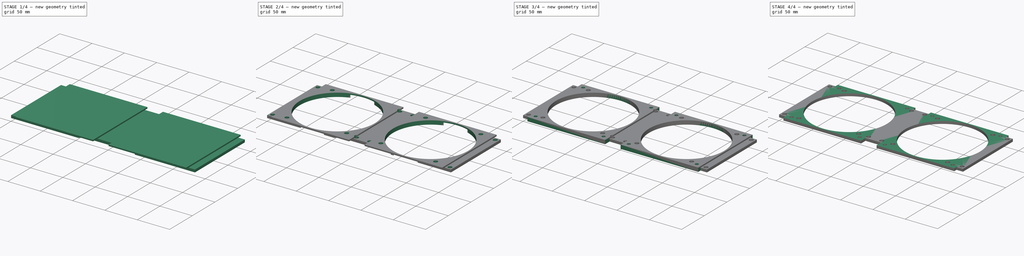
[diagram: build sequence overview — one tinted view per stage of 4, left to right]
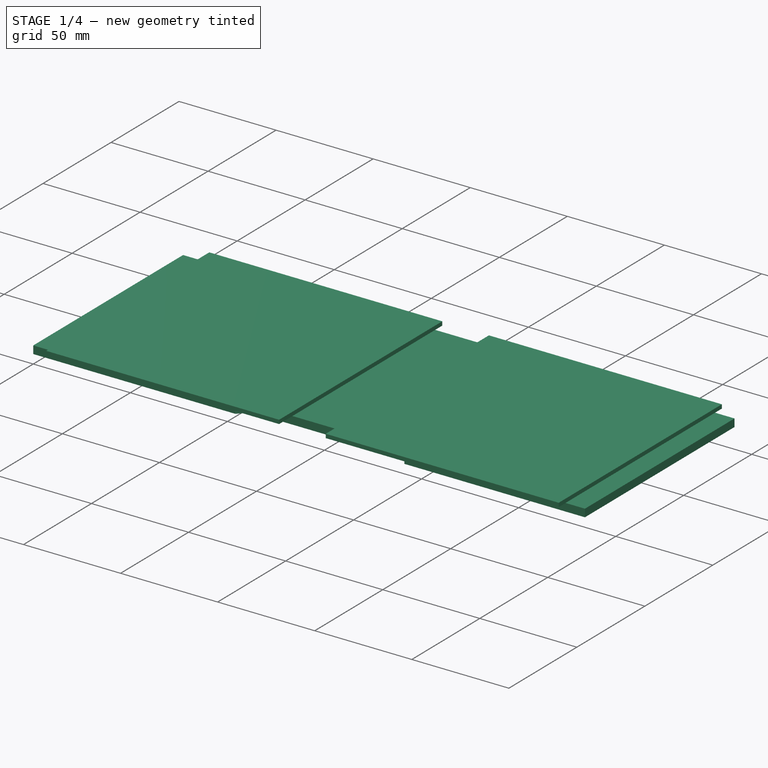
[diagram: stage 1 of 4 — iso view after this stage's code; geometry added in this stage tinted green]
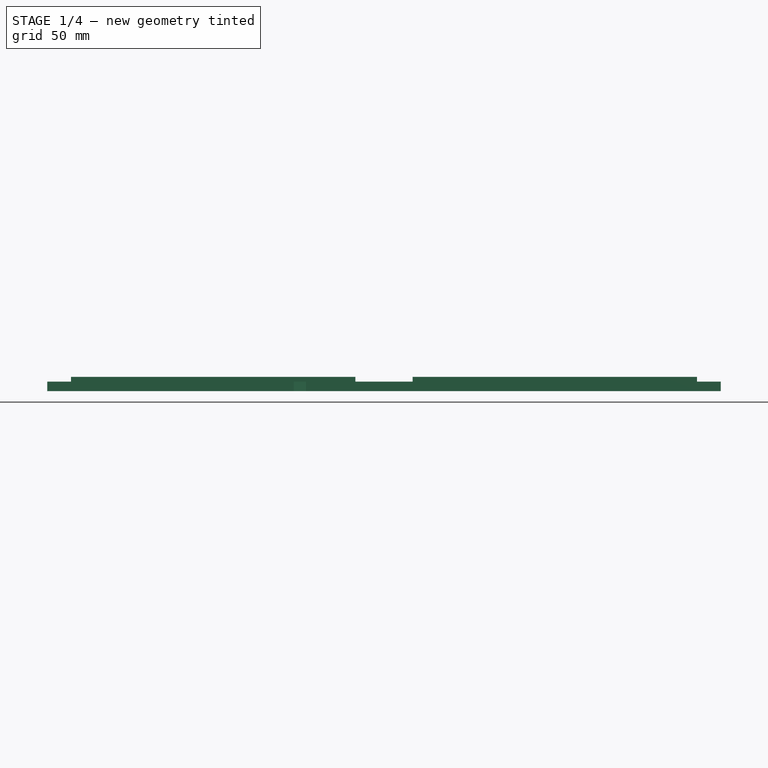
[diagram: stage 1 of 4 — front view after this stage's code; geometry added in this stage tinted green]
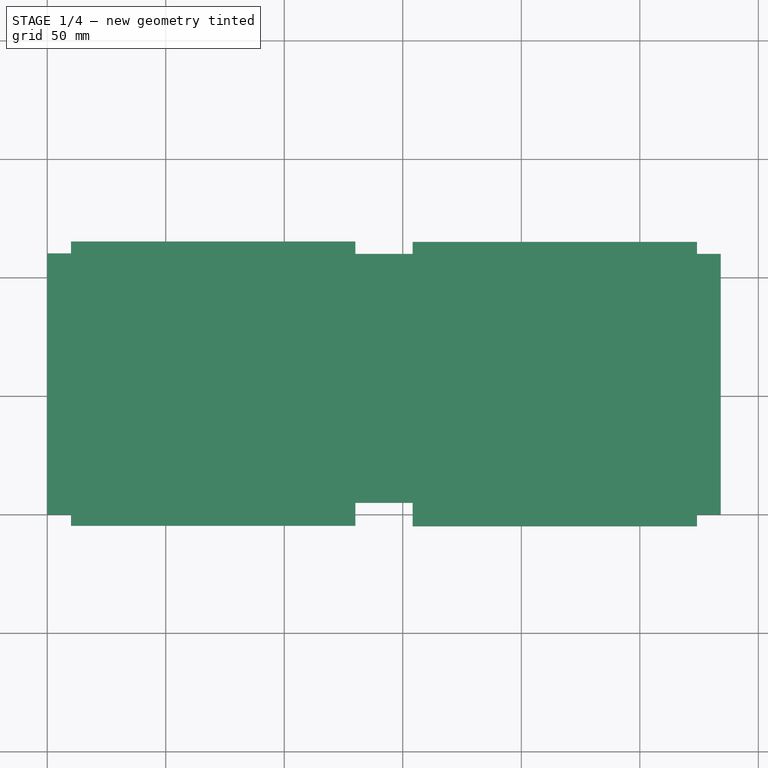
[diagram: stage 1 of 4 — top view after this stage's code; geometry added in this stage tinted green]
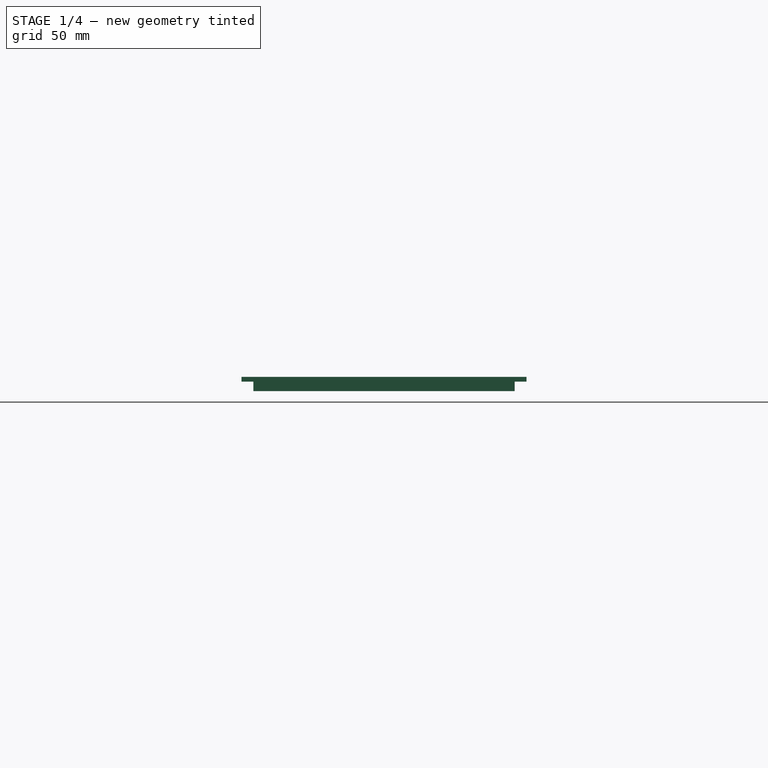
[diagram: stage 1 of 4 — right view after this stage's code; geometry added in this stage tinted green]
FCSTD DOCUMENT  (FreeCAD 1.0R39109 (Git))
Label: bottom_right
License: All rights reserved
LicenseURL: https://en.wikipedia.org/wiki/All_rights_reserved
objects: Sketcher::SketchObject×6, PartDesign::Pocket×6, PartDesign::Pad×3, PartDesign::Body×1
note: 40 computed .brp shape members not serialized (recipe doc carries the construction recipe); baked Part::Feature solids carry a one-line shape summary decoded from their .brp

FEATURE [Sketcher::SketchObject] Sketch
  ArcFitTolerance = 1e-06
  AttachmentSupport = -> [XY_Plane]
  FullyConstrained = false
  MakeInternals = false
  MapMode = 5
  sketch-geometry (12):
    g0: LineSegment StartX=0 StartY=-50 StartZ=0 EndX=104 EndY=-50 EndZ=0
    g1: LineSegment StartX=109.15 StartY=-45 StartZ=0 EndX=191.15 EndY=-45 EndZ=0
    g2: LineSegment StartX=191.15 StartY=-45 StartZ=0 EndX=191.15 EndY=-50 EndZ=0
    g3: LineSegment StartX=191.15 StartY=-50 StartZ=0 EndX=284.15 EndY=-50 EndZ=0
    g4: LineSegment StartX=104 StartY=-50 StartZ=0 EndX=109.15 EndY=-45 EndZ=0
    g5: LineSegment StartX=284.15 StartY=60 StartZ=0 EndX=122.15 EndY=60 EndZ=0
    g6: LineSegment StartX=122.15 StartY=60 StartZ=0 EndX=117.846 EndY=50.9736 EndZ=0
    g7: LineSegment StartX=0 StartY=60.2044 StartZ=0 EndX=101 EndY=60.2044 EndZ=0
    g8: LineSegment StartX=101 StartY=60.2044 StartZ=0 EndX=104.846 EndY=50.9736 EndZ=0
    g9: LineSegment StartX=104.846 StartY=50.9736 StartZ=0 EndX=117.846 EndY=50.9736 EndZ=0
    g10: LineSegment StartX=0 StartY=60.2044 StartZ=0 EndX=0 EndY=-50 EndZ=0
    g11: LineSegment StartX=284.15 StartY=60 StartZ=0 EndX=284.15 EndY=-50 EndZ=0
  constraints (35):
    c: Distance(g0) = 104
    c: Horizontal(g0)
    c: Distance(g1) = 82
    c: Horizontal(g1)
    c: Distance(g2) = 5
    c: Vertical(g2)
    c: Coincident(g2,g1)
    c: Distance(g3) = 93
    c: Horizontal(g3)
    c: Coincident(g3,g2)
    c: DistanceY(g0,g-1) = 50
    c: DistanceY(g3,g-1) = 50
    c: Coincident(g4,g0)
    c: Coincident(g4,g1)
    c: Distance(g5) = 162
    c: Horizontal(g5)
    c: Distance(g6) = 10
    c: Coincident(g6,g5)
    c: Distance(g7) = 101
    c: Horizontal(g7)
    c: Distance(g8) = 10
    c: Coincident(g8,g7)
    c: Distance(g9) = 13
    c: Coincident(g9,g8)
    c: Coincident(g9,g6)
    c: Horizontal(g9)
    c: Coincident(g10,g7)
    c: Coincident(g10,g0)
    c: Vertical(g10)
    c: Coincident(g11,g5)
    c: Coincident(g11,g3)
    c: Vertical(g11)
    c: PointOnObject(g0,g-2)
    c: DistanceY(g3,g5) = 110
    c: DistanceX(g-1,g3) = 284.15
FEATURE [PartDesign::Pad] Pad
  Direction = (0,0,1)
  Length = 4
  Length2 = 10
  Profile = -> Sketch
  ReferenceAxis = -> Sketch [N_Axis]
  Refine = true
  Suppressed = false
  Type = 0
FEATURE [Sketcher::SketchObject] Sketch001
  ArcFitTolerance = 1e-06
  AttachmentSupport = -> [Pad]
  ExternalGeometry = -> [Pad]
  FullyConstrained = true
  MakeInternals = false
  MapMode = 5
  Placement = pos=(0,0,4) rot=(0,0,1;0rad)
  sketch-geometry (8):
    g0: LineSegment StartX=10 StartY=65.2044 StartZ=0 EndX=10 EndY=-54.7956 EndZ=0
    g1: LineSegment StartX=10 StartY=-54.7956 StartZ=0 EndX=130 EndY=-54.7956 EndZ=0
    g2: LineSegment StartX=130 StartY=-54.7956 StartZ=0 EndX=130 EndY=65.2044 EndZ=0
    g3: LineSegment StartX=130 StartY=65.2044 StartZ=0 EndX=10 EndY=65.2044 EndZ=0
    g4: LineSegment StartX=154.15 StartY=65 StartZ=0 EndX=154.15 EndY=-55 EndZ=0
    g5: LineSegment StartX=154.15 StartY=-55 StartZ=0 EndX=274.15 EndY=-55 EndZ=0
    g6: LineSegment StartX=274.15 StartY=-55 StartZ=0 EndX=274.15 EndY=65 EndZ=0
    g7: LineSegment StartX=274.15 StartY=65 StartZ=0 EndX=154.15 EndY=65 EndZ=0
  constraints (24):
    c: Coincident(g0,g1)
    c: Coincident(g1,g2)
    c: Coincident(g2,g3)
    c: Coincident(g3,g0)
    c: Vertical(g0)
    c: Vertical(g2)
    c: Horizontal(g1)
    c: Horizontal(g3)
    c: Distance(g0,g2) = 120
    c: Distance(g1,g3) = 120
    c: DistanceX(g-3,g0) = 10
    c: DistanceY(g-3,g0) = 5
    c: Coincident(g4,g5)
    c: Coincident(g5,g6)
    c: Coincident(g6,g7)
    c: Coincident(g7,g4)
    c: Vertical(g4)
    c: Vertical(g6)
    c: Horizontal(g5)
    c: Horizontal(g7)
    c: Distance(g4,g6) = 120
    c: Distance(g5,g7) = 120
    c: DistanceX(g6,g-4) = 10
    c: DistanceY(g-4,g6) = 5
FEATURE [PartDesign::Pad] Pad001
  BaseFeature = -> Pad
  Direction = (0,0,1)
  Length = 2
  Length2 = 10
  Profile = -> Sketch001
  ReferenceAxis = -> Sketch001 [N_Axis]
  Refine = true
  Suppressed = false
  Type = 0
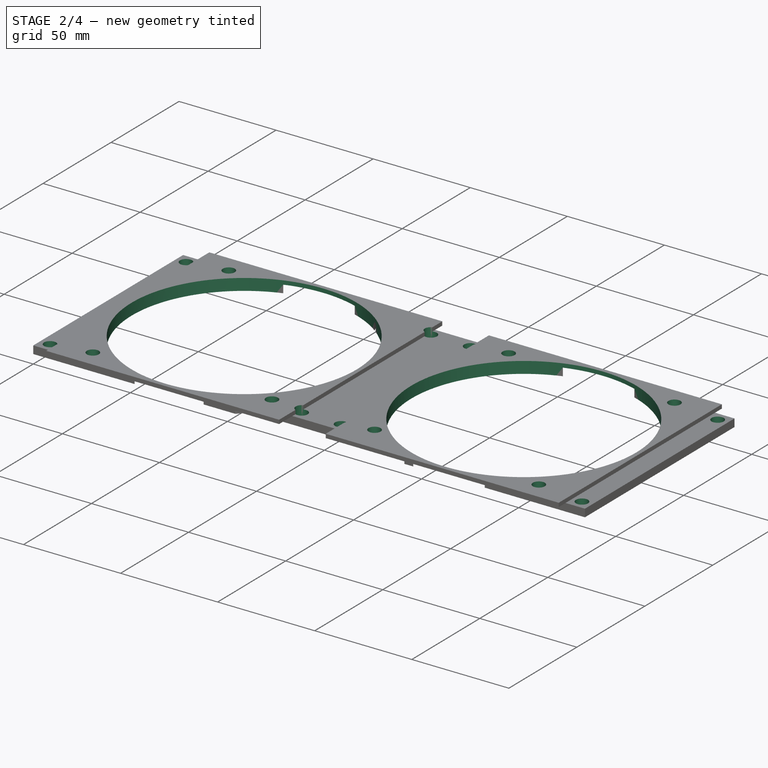
[diagram: stage 2 of 4 — iso view after this stage's code; geometry added in this stage tinted green]
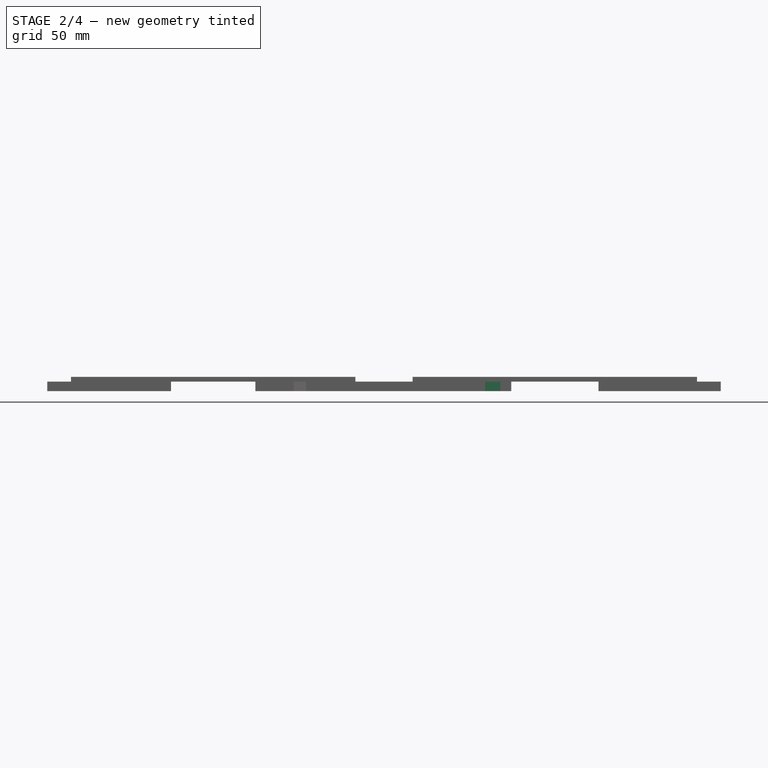
[diagram: stage 2 of 4 — front view after this stage's code; geometry added in this stage tinted green]
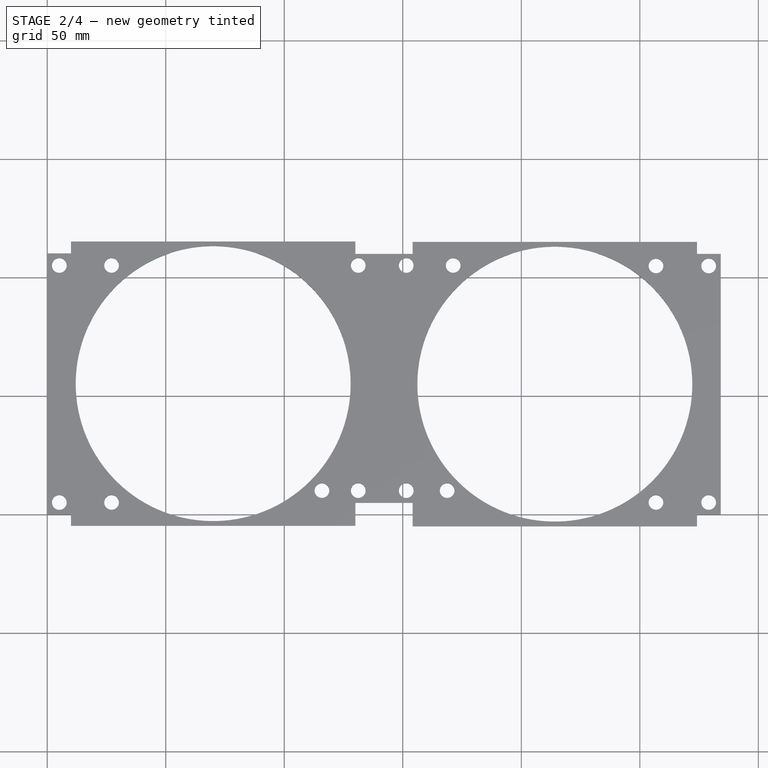
[diagram: stage 2 of 4 — top view after this stage's code; geometry added in this stage tinted green]
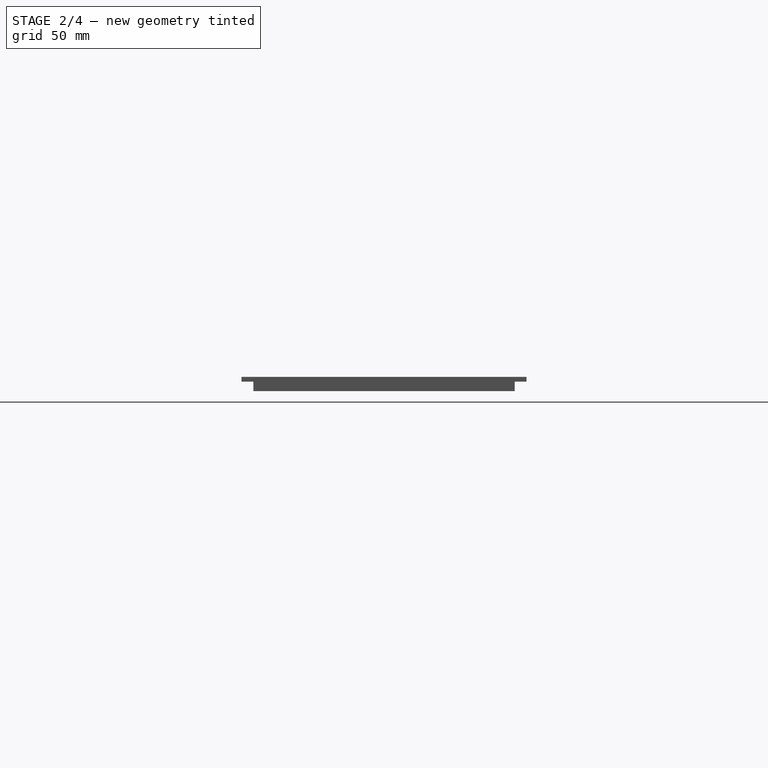
[diagram: stage 2 of 4 — right view after this stage's code; geometry added in this stage tinted green]
FEATURE [Sketcher::SketchObject] Sketch002
  ArcFitTolerance = 1e-06
  AttachmentSupport = -> [Pad001]
  ExternalGeometry = -> [Pad001]
  FullyConstrained = true
  MakeInternals = false
  MapMode = 5
  Placement = pos=(0,0,6) rot=(0,0,1;0rad)
  sketch-geometry (2):
    g0: Circle CenterX=70 CenterY=5.20436 CenterZ=0 NormalX=0 NormalY=0 NormalZ=1 AngleXU=0 Radius=58
    g1: Circle CenterX=214.15 CenterY=5 CenterZ=0 NormalX=0 NormalY=0 NormalZ=1 AngleXU=0 Radius=58
  constraints (6):
    c: DistanceX(g-3,g0) = 60
    c: DistanceY(g0,g-3) = 60
    c: Distance(g0,g-3) = 2
    c: DistanceX(g-4,g1) = 60
    c: DistanceY(g1,g-4) = 60
    c: Distance(g1,g-4) = 2
FEATURE [PartDesign::Pocket] Pocket
  BaseFeature = -> Pad001
  Direction = (0,0,-1)
  Length = 5
  Length2 = 5
  Profile = -> Sketch002
  ReferenceAxis = -> Sketch002 [N_Axis]
  Refine = true
  Suppressed = false
  Type = 1
FEATURE [Sketcher::SketchObject] Sketch004
  ArcFitTolerance = 1e-06
  AttachmentSupport = -> [Pocket]
  ExternalGeometry = -> [Pocket]
  FullyConstrained = false
  MakeInternals = false
  MapMode = 5
  Placement = pos=(0,0,0) rot=(1,0,0;3.14159rad)
  sketch-geometry (15):
    g0: Circle CenterX=5.1 CenterY=44.9 CenterZ=0 NormalX=0 NormalY=0 NormalZ=1 AngleXU=0 Radius=3.1
    g1: Circle CenterX=5.1 CenterY=-55.1044 CenterZ=0 NormalX=0 NormalY=0 NormalZ=1 AngleXU=0 Radius=3.1
    g2: Circle CenterX=279.05 CenterY=44.9 CenterZ=0 NormalX=0 NormalY=0 NormalZ=1 AngleXU=0 Radius=3.1
    g3: Circle CenterX=279.05 CenterY=-54.9 CenterZ=0 NormalX=0 NormalY=0 NormalZ=1 AngleXU=0 Radius=3.1
    g4: Circle CenterX=115.883 CenterY=39.9 CenterZ=0 NormalX=0 NormalY=0 NormalZ=1 AngleXU=0 Radius=3.1
    g5: Circle CenterX=131.204 CenterY=39.9 CenterZ=0 NormalX=0 NormalY=0 NormalZ=1 AngleXU=0 Radius=3.1
    g6: Circle CenterX=168.716 CenterY=39.9 CenterZ=0 NormalX=0 NormalY=0 NormalZ=1 AngleXU=0 Radius=3.1
    g7: Circle CenterX=27.1245 CenterY=44.9 CenterZ=0 NormalX=0 NormalY=0 NormalZ=1 AngleXU=0 Radius=3.1
    g8: Circle CenterX=27.1245 CenterY=-55.1044 CenterZ=0 NormalX=0 NormalY=0 NormalZ=1 AngleXU=0 Radius=3.1
    g9: Circle CenterX=131.204 CenterY=-55.1044 CenterZ=0 NormalX=0 NormalY=0 NormalZ=1 AngleXU=0 Radius=3.1
    g10: Circle CenterX=151.454 CenterY=39.9 CenterZ=0 NormalX=0 NormalY=0 NormalZ=1 AngleXU=0 Radius=3.1
    g11: Circle CenterX=256.82 CenterY=44.9 CenterZ=0 NormalX=0 NormalY=0 NormalZ=1 AngleXU=0 Radius=3.1
    g12: Circle CenterX=256.82 CenterY=-54.9 CenterZ=0 NormalX=0 NormalY=0 NormalZ=1 AngleXU=0 Radius=3.1
    g13: Circle CenterX=151.454 CenterY=-55.1044 CenterZ=0 NormalX=0 NormalY=0 NormalZ=1 AngleXU=0 Radius=3.1
    g14: Circle CenterX=171.252 CenterY=-55.1044 CenterZ=0 NormalX=0 NormalY=0 NormalZ=1 AngleXU=0 Radius=3.1
  constraints (36):
    c: Diameter(g0) = 6.2
    c: Diameter(g1) = 6.2
    c: DistanceX(g-5,g1) = 5.1
    c: DistanceY(g-5,g1) = 5.1
    c: Diameter(g2) = 6.2
    c: Diameter(g3) = 6.2
    c: DistanceX(g2,g-6) = 5.1
    c: DistanceY(g2,g-6) = 5.1
    c: DistanceX(g3,g-7) = 5.1
    c: DistanceY(g-7,g3) = 5.1
    c: Diameter(g4) = 6.2
    c: Diameter(g5) = 6.2
    c: Diameter(g6) = 6.2
    c: Diameter(g7) = 6.2
    c: Horizontal(g7,g0)
    c: Diameter(g8) = 6.2
    c: Horizontal(g8,g1)
    c: Vertical(g8,g7)
    c: DistanceY(g4,g-8) = 5.1
    c: Horizontal(g5,g4)
    c: Horizontal(g6,g5)
    c: Diameter(g9) = 6.2
    c: Vertical(g5,g9)
    c: Horizontal(g9,g8)
    c: Diameter(g10) = 6.2
    c: DistanceY(g10,g-8) = 5.1
    c: Diameter(g11) = 6.2
    c: Horizontal(g11,g2)
    c: Diameter(g12) = 6.2
    c: Horizontal(g12,g3)
    c: Vertical(g12,g11)
    c: Diameter(g13) = 6.2
    c: Vertical(g10,g13)
    c: Horizontal(g13,g9)
    c: Diameter(g14) = 6.2
    c: Horizontal(g14,g13)
FEATURE [PartDesign::Pocket] Pocket001
  BaseFeature = -> Pocket
  Direction = (0,0,1)
  Length = 5
  Length2 = 5
  Profile = -> Sketch004
  ReferenceAxis = -> Sketch004 [N_Axis]
  Refine = true
  Suppressed = false
  Type = 1
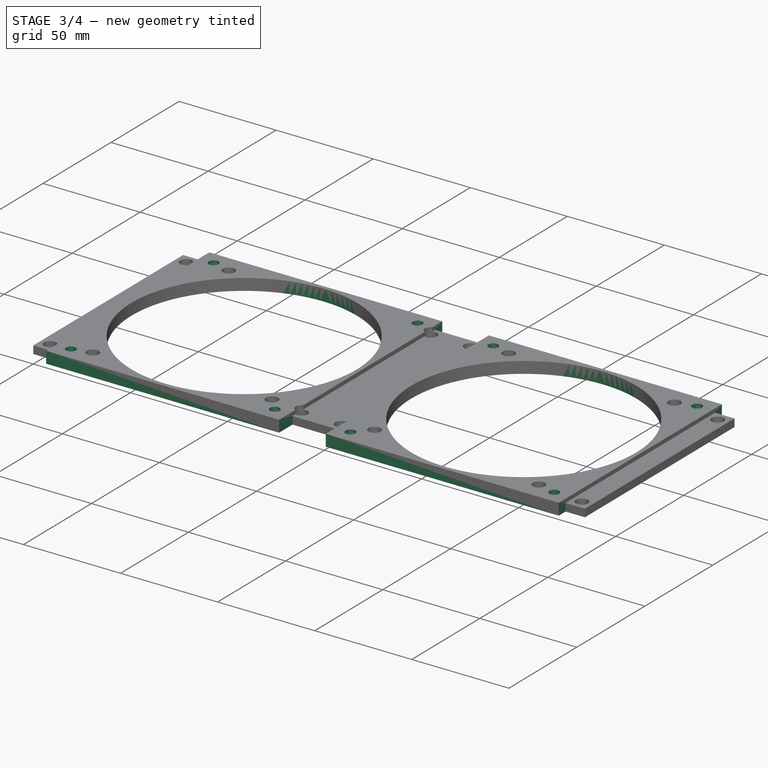
[diagram: stage 3 of 4 — iso view after this stage's code; geometry added in this stage tinted green]
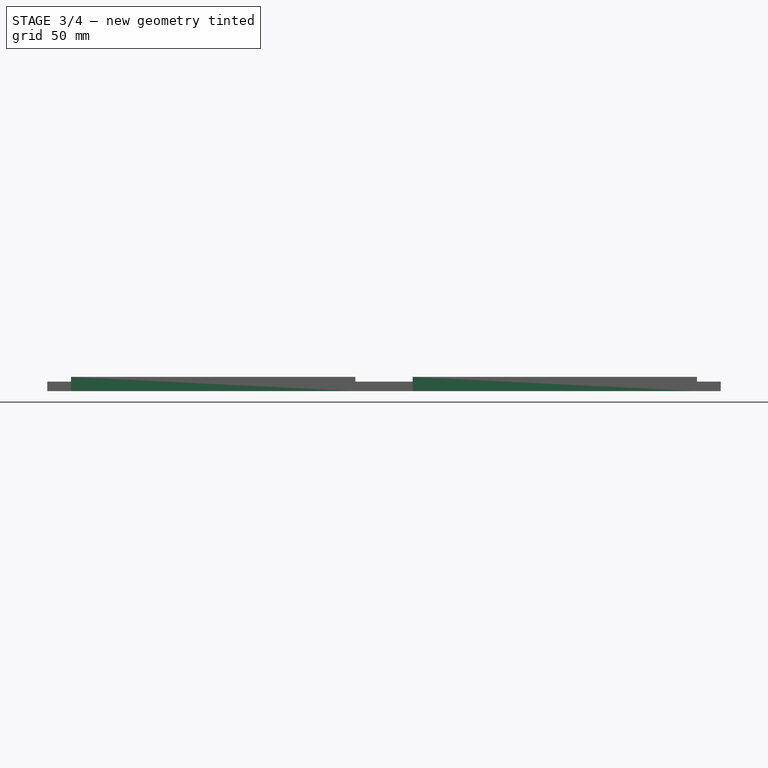
[diagram: stage 3 of 4 — front view after this stage's code; geometry added in this stage tinted green]
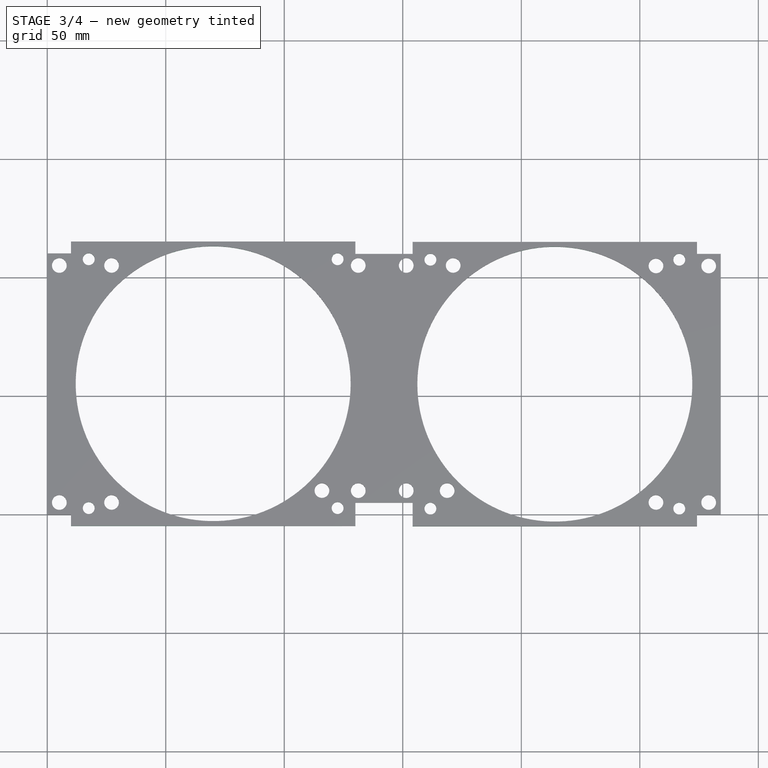
[diagram: stage 3 of 4 — top view after this stage's code; geometry added in this stage tinted green]
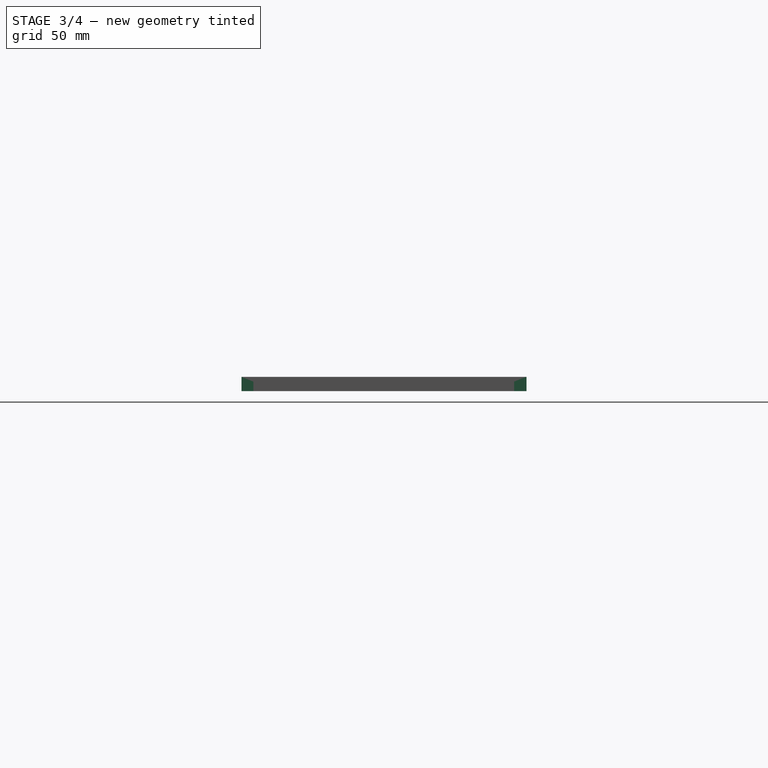
[diagram: stage 3 of 4 — right view after this stage's code; geometry added in this stage tinted green]
FEATURE [PartDesign::Pad] Pad002
  BaseFeature = -> Pocket001
  Direction = (0,0,-1)
  Length = 4
  Length2 = 10
  Profile = -> Pocket001 [Face8,Face7,Face39,Face40]
  Refine = true
  Suppressed = false
  Type = 0
FEATURE [Sketcher::SketchObject] Sketch005
  ArcFitTolerance = 1e-06
  AttachmentSupport = -> [Pad002]
  ExternalGeometry = -> [Pad002]
  FullyConstrained = true
  MakeInternals = false
  MapMode = 5
  Placement = pos=(0,0,0) rot=(1,0,0;3.14159rad)
  sketch-geometry (8):
    g0: Circle CenterX=17.5 CenterY=47.2956 CenterZ=0 NormalX=0 NormalY=0 NormalZ=1 AngleXU=0 Radius=3.5
    g1: Circle CenterX=122.5 CenterY=-57.7044 CenterZ=0 NormalX=0 NormalY=0 NormalZ=1 AngleXU=0 Radius=3.5
    g2: Circle CenterX=122.5 CenterY=47.2956 CenterZ=0 NormalX=0 NormalY=0 NormalZ=1 AngleXU=0 Radius=3.5
    g3: Circle CenterX=17.5 CenterY=-57.7044 CenterZ=0 NormalX=0 NormalY=0 NormalZ=1 AngleXU=0 Radius=3.5
    g4: Circle CenterX=161.65 CenterY=47.5 CenterZ=0 NormalX=0 NormalY=0 NormalZ=1 AngleXU=0 Radius=3.5
    g5: Circle CenterX=266.65 CenterY=-57.5 CenterZ=0 NormalX=0 NormalY=0 NormalZ=1 AngleXU=0 Radius=3.5
    g6: Circle CenterX=266.65 CenterY=47.5 CenterZ=0 NormalX=0 NormalY=0 NormalZ=1 AngleXU=0 Radius=3.5
    g7: Circle CenterX=161.65 CenterY=-57.5 CenterZ=0 NormalX=0 NormalY=0 NormalZ=1 AngleXU=0 Radius=3.5
  constraints (24):
    c: Diameter(g0) = 7
    c: DistanceX(g-3,g0) = 7.5
    c: DistanceY(g0,g-3) = 7.5
    c: Diameter(g1) = 7
    c: DistanceX(g1,g-4) = 7.5
    c: DistanceY(g-4,g1) = 7.5
    c: Diameter(g2) = 7
    c: Diameter(g3) = 7
    c: Vertical(g0,g3)
    c: Horizontal(g3,g1)
    c: Horizontal(g0,g2)
    c: Vertical(g2,g1)
    c: Diameter(g4) = 7
    c: Diameter(g5) = 7
    c: Diameter(g6) = 7
    c: Diameter(g7) = 7
    c: Vertical(g4,g7)
    c: Horizontal(g7,g5)
    c: Vertical(g5,g6)
    c: DistanceX(g-6,g4) = 7.5
    c: DistanceY(g4,g-6) = 7.5
    c: DistanceX(g5,g-5) = 7.5
    c: DistanceY(g-5,g5) = 7.5
    c: Horizontal(g6,g4)
FEATURE [PartDesign::Pocket] Pocket002
  BaseFeature = -> Pad002
  Direction = (0,0,1)
  Length = 2
  Length2 = 5
  Profile = -> Sketch005
  ReferenceAxis = -> Sketch005 [N_Axis]
  Refine = true
  Suppressed = false
  Type = 0
FEATURE [Sketcher::SketchObject] Sketch006
  ArcFitTolerance = 1e-06
  AttachmentSupport = -> [Pocket002]
  ExternalGeometry = -> [Pocket002]
  FullyConstrained = false
  MakeInternals = false
  MapMode = 5
  Placement = pos=(0,0,0) rot=(1,0,0;3.14159rad)
  sketch-geometry (8):
    g0: Circle CenterX=17.5 CenterY=47.2956 CenterZ=0 NormalX=0 NormalY=0 NormalZ=1 AngleXU=0 Radius=2.5
    g1: Circle CenterX=122.5 CenterY=47.2956 CenterZ=0 NormalX=0 NormalY=0 NormalZ=1 AngleXU=0 Radius=2.5
    g2: Circle CenterX=17.5 CenterY=-57.7044 CenterZ=0 NormalX=0 NormalY=0 NormalZ=1 AngleXU=0 Radius=2.5
    g3: Circle CenterX=122.5 CenterY=-57.7044 CenterZ=0 NormalX=0 NormalY=0 NormalZ=1 AngleXU=0 Radius=2.5
    g4: Circle CenterX=161.65 CenterY=47.5 CenterZ=0 NormalX=0 NormalY=0 NormalZ=1 AngleXU=0 Radius=2.5
    g5: Circle CenterX=266.65 CenterY=47.5 CenterZ=0 NormalX=0 NormalY=0 NormalZ=1 AngleXU=0 Radius=2.5
    g6: Circle CenterX=266.65 CenterY=-57.5 CenterZ=0 NormalX=0 NormalY=0 NormalZ=1 AngleXU=0 Radius=2.5
    g7: Circle CenterX=161.65 CenterY=-57.5 CenterZ=0 NormalX=0 NormalY=0 NormalZ=1 AngleXU=0 Radius=2.5
  constraints (8):
    c: Diameter(g0) = 5
    c: Diameter(g1) = 5
    c: Diameter(g2) = 5
    c: Diameter(g3) = 5
    c: Diameter(g4) = 5
    c: Diameter(g5) = 5
    c: Diameter(g6) = 5
    c: Diameter(g7) = 5
FEATURE [PartDesign::Pocket] Pocket003
  BaseFeature = -> Pocket002
  Direction = (0,0,1)
  Length = 5
  Length2 = 5
  Profile = -> Sketch006
  ReferenceAxis = -> Sketch006 [N_Axis]
  Refine = true
  Suppressed = false
  Type = 1
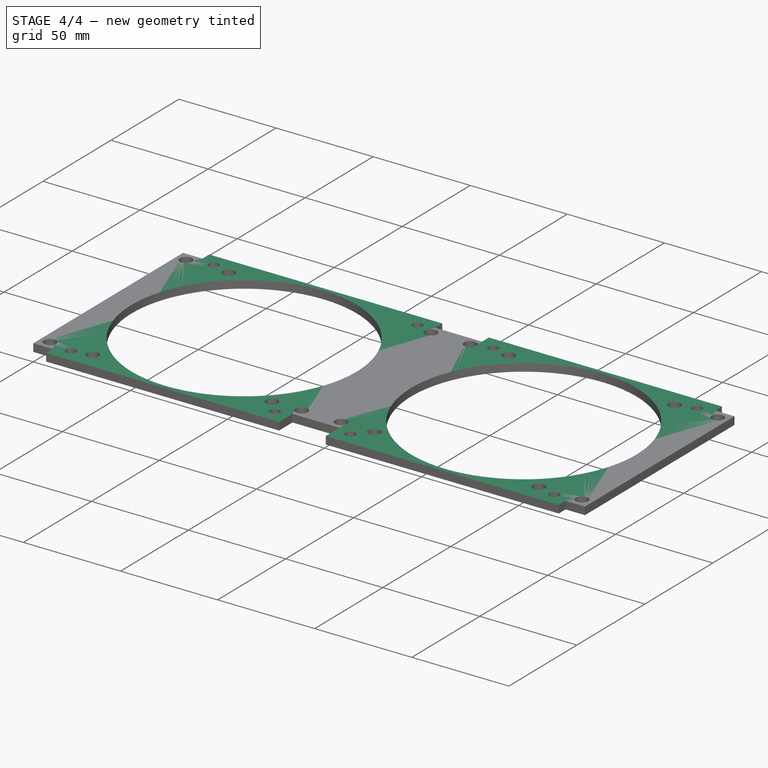
[diagram: stage 4 of 4 — iso view after this stage's code; geometry added in this stage tinted green]
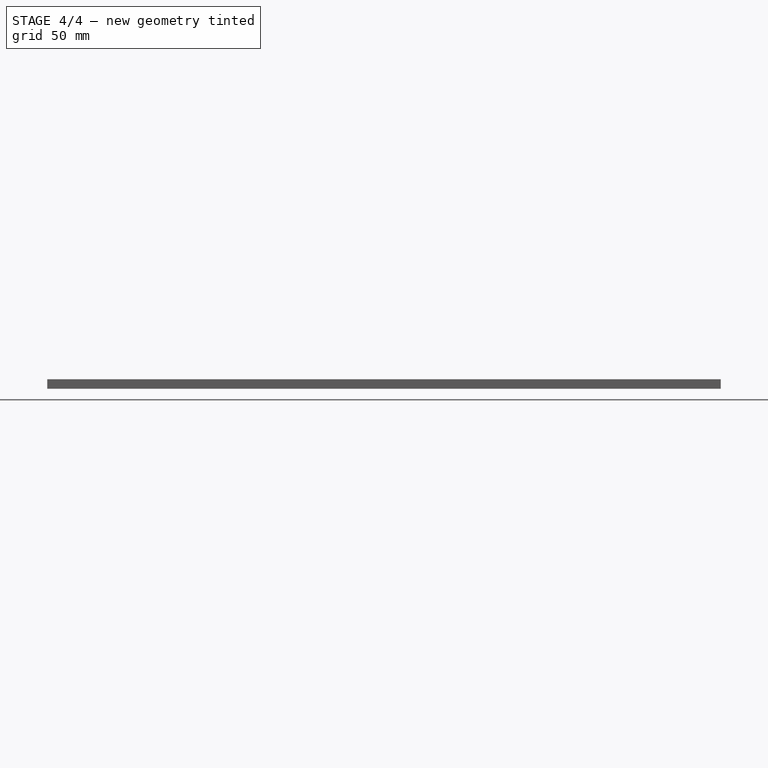
[diagram: stage 4 of 4 — front view after this stage's code; geometry added in this stage tinted green]
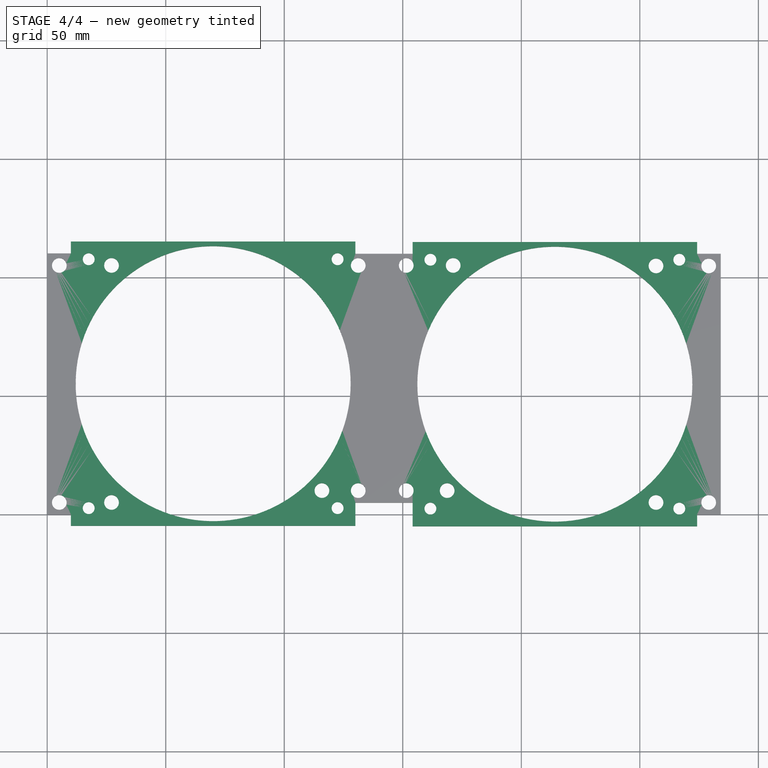
[diagram: stage 4 of 4 — top view after this stage's code; geometry added in this stage tinted green]
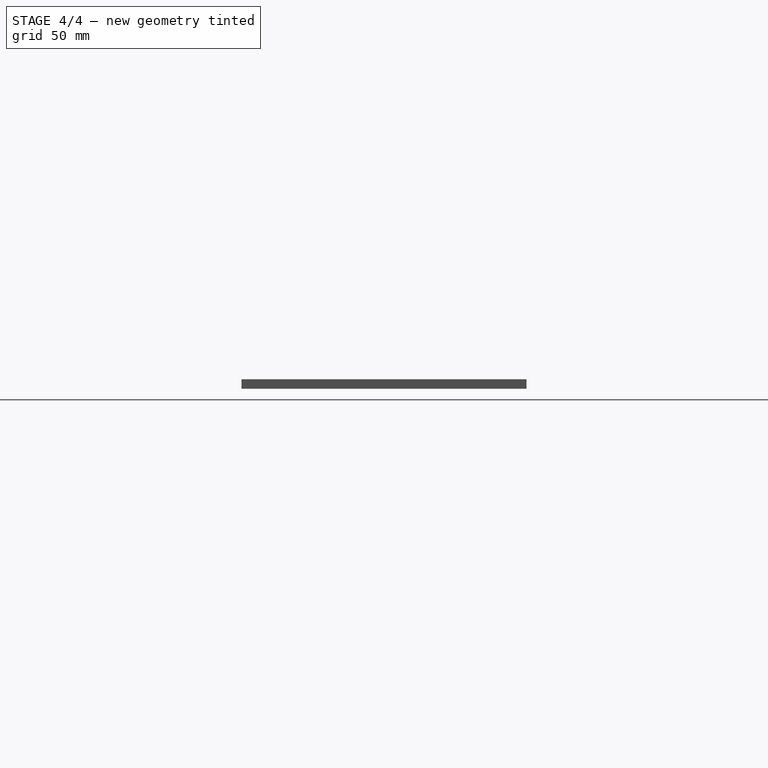
[diagram: stage 4 of 4 — right view after this stage's code; geometry added in this stage tinted green]
FEATURE [PartDesign::Pocket] Pocket004
  BaseFeature = -> Pocket003
  Direction = (0,0,-1)
  Length = 2
  Length2 = 5
  Profile = -> Pad002 [Face9]
  Refine = true
  Suppressed = false
  Type = 0
FEATURE [PartDesign::Pocket] Pocket005
  BaseFeature = -> Pocket004
  Direction = (0,0,-1)
  Length = 2
  Length2 = 5
  Profile = -> Pocket004 [Face46]
  Refine = true
  Suppressed = false
  Type = 0
FEATURE [PartDesign::Body] Body
  AllowCompound = false
  Group = -> [Sketch,Pad,Sketch001,Pad001,Sketch002,Pocket,Sketch004,Pocket001,Pad002,Sketch005,Pocket002,Sketch006,Pocket003,Pocket004,Pocket005]
  Origin = -> Origin
  Tip = -> Pocket005
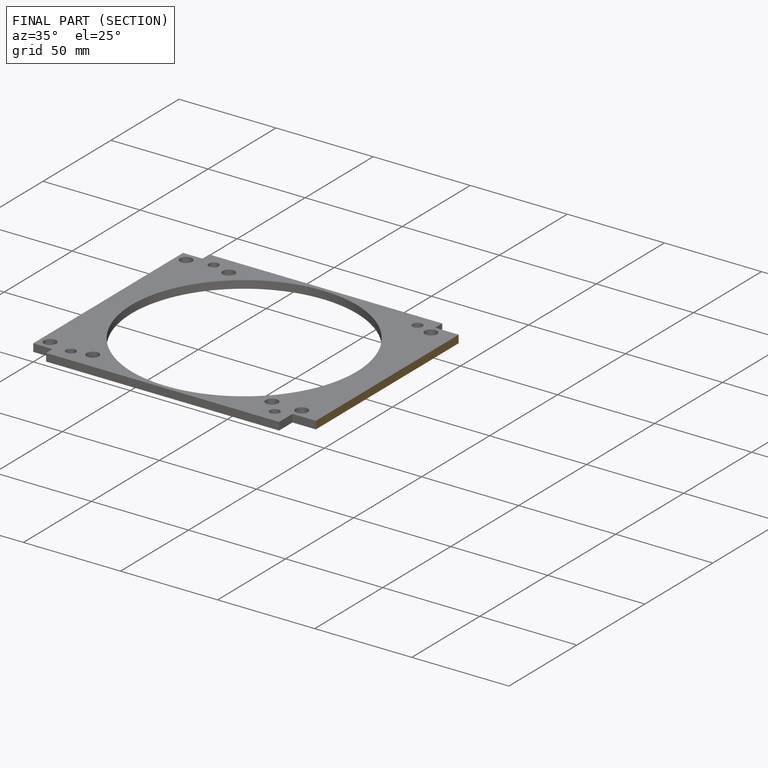
[diagram: finished part — half-section view (interior)]
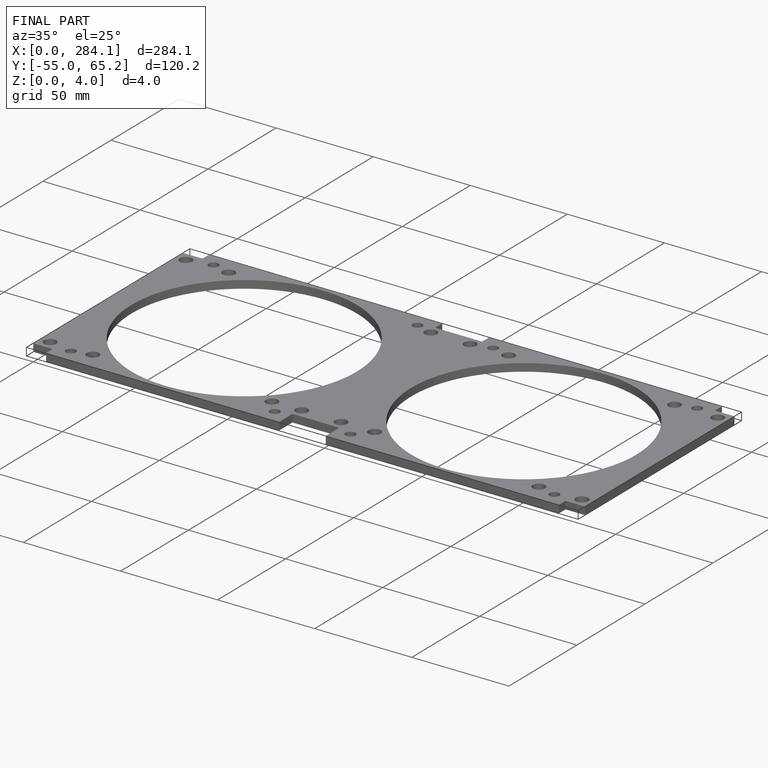
[diagram: finished part — iso view with bounding-box wireframe]
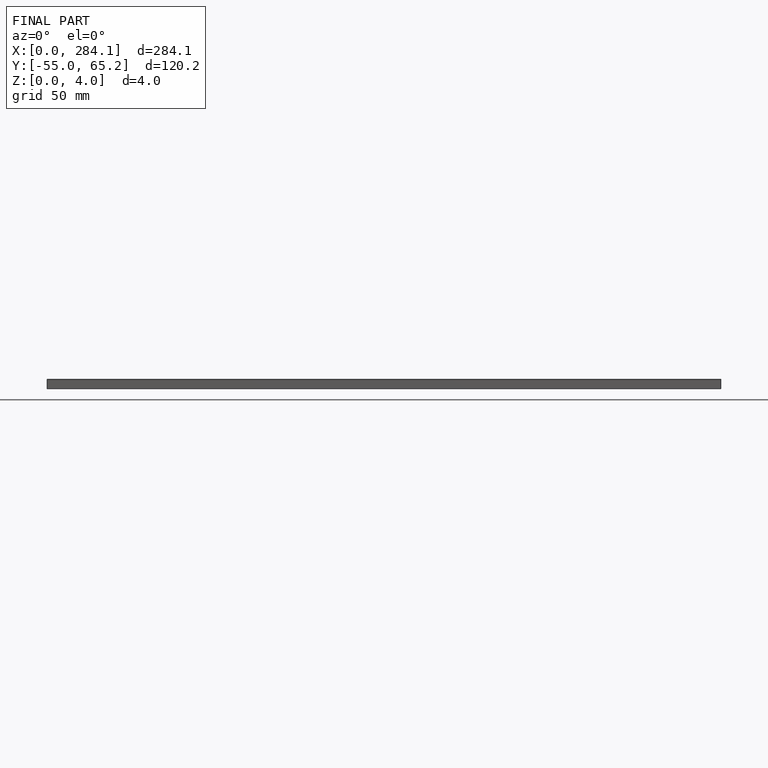
[diagram: finished part — front view with bounding-box wireframe]
